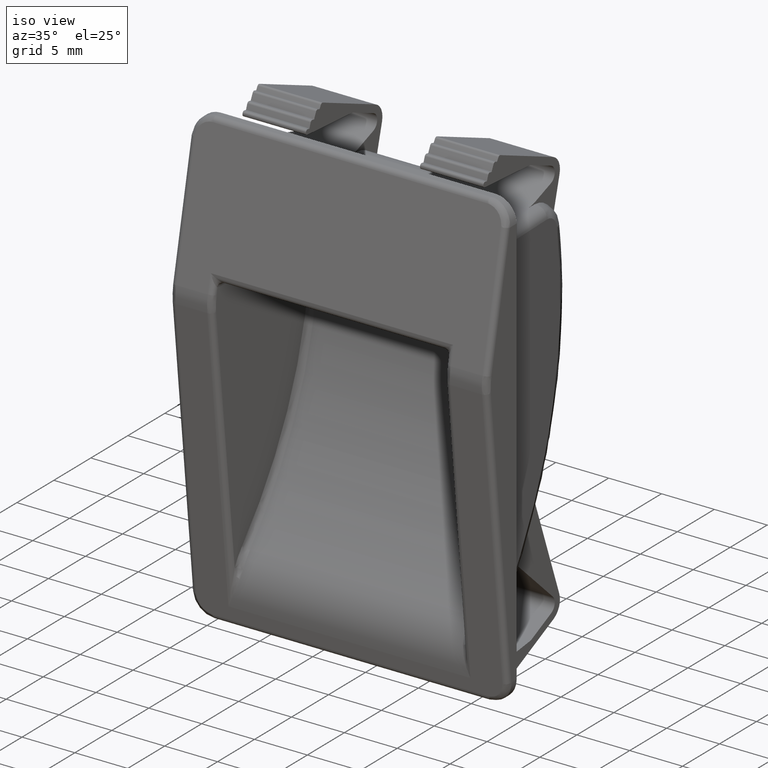
[diagram: clean part render]
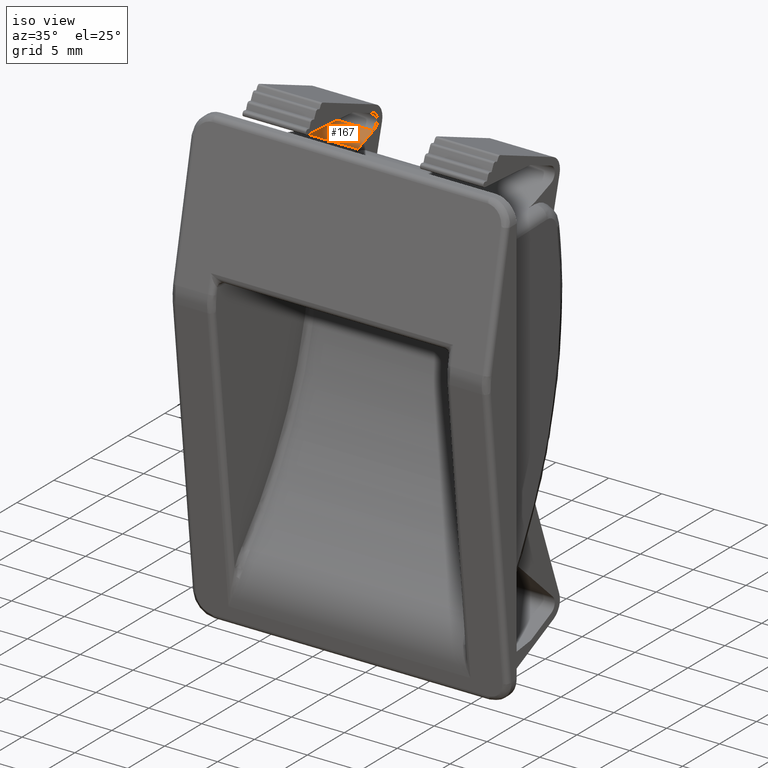
[diagram: same view with one face highlighted and labeled with its STEP entity id]
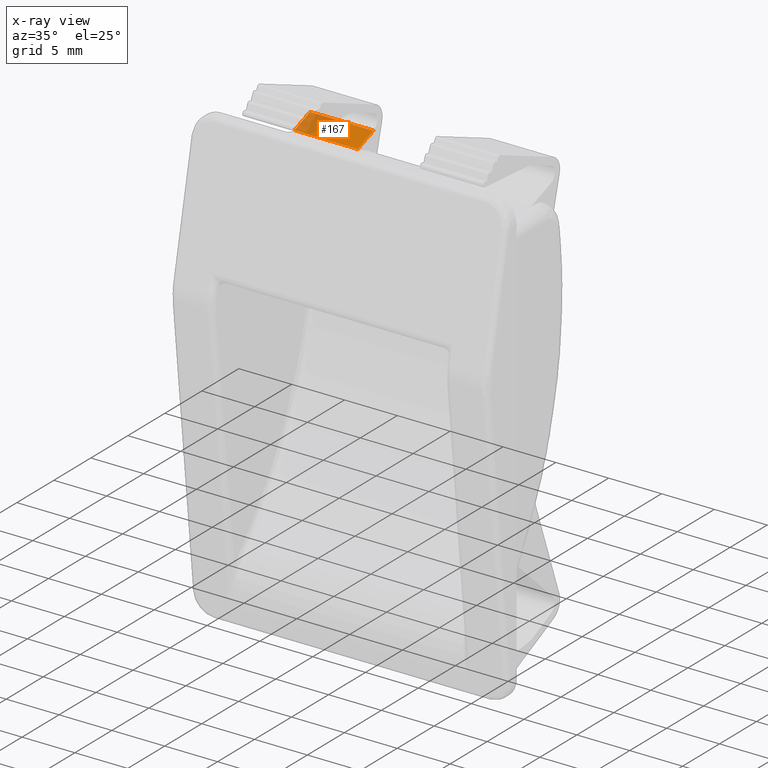
[diagram: x-ray of the same camera — body ghosted, the highlighted face saturated]
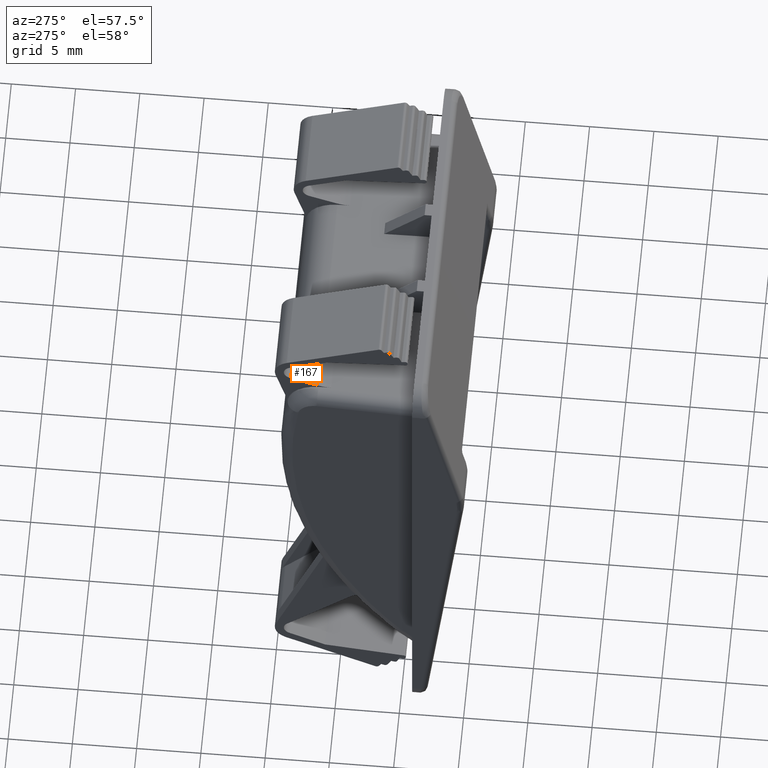
[diagram: same view with one face highlighted and labeled with its STEP entity id]
A machine part, iso view. The second image highlights one B-rep face of the part: STEP entity #167.
The next image is the same camera in x-ray: the body ghosted, the highlighted face saturated — about 32% of this face is hidden behind the body in this view.
A second angle (auxiliary view) of the same face is appended — the face is thin or edge-on in the first view.
In plain terms, the highlighted planar face has unit normal (0, -0.342, 0.9397).
Its self-contained STEP definition (entity closure, byte-faithful):
#167=ADVANCED_FACE('',(#1520),#1519,.T.);
#1519=PLANE('',#3143);
#1520=FACE_OUTER_BOUND('',#3144,.T.);
#3140=CARTESIAN_POINT('',(-1.20000000000E+001,1.39858484265E+001,1.15264295591E+001));
#3141=DIRECTION('',(0.00000000000E+000,-3.42020143326E-001,9.39692620786E-001));
#3142=DIRECTION('',(0.00000000000E+000,-9.39692620786E-001,-3.42020143326E-001));
#3143=AXIS2_PLACEMENT_3D('',#3140,#3141,#3142);
#3144=EDGE_LOOP('',(#4724,#4725,#4726,#4727));
#4724=ORIENTED_EDGE('',*,*,#5570,.F.);
#4725=ORIENTED_EDGE('',*,*,#5571,.F.);
#4726=ORIENTED_EDGE('',*,*,#5572,.T.);
#4727=ORIENTED_EDGE('',*,*,#5568,.T.);
#5568=EDGE_CURVE('',#8572,#8565,#8573,.T.);
#5570=EDGE_CURVE('',#8585,#8565,#8586,.T.);
#5571=EDGE_CURVE('',#8592,#8585,#8593,.T.);
#5572=EDGE_CURVE('',#8592,#8572,#8599,.T.);
#8565=VERTEX_POINT('',#11201);
#8572=VERTEX_POINT('',#11206);
#8573=LINE('',#11207,#11208);
#8585=VERTEX_POINT('',#11214);
#8586=LINE('',#11215,#11216);
#8592=VERTEX_POINT('',#11218);
#8593=LINE('',#11219,#11220);
#8599=LINE('',#11222,#11223);
#11201=CARTESIAN_POINT('',(-1.14000000000E+001,1.37757622355E+001,1.14499644390E+001));
#11206=CARTESIAN_POINT('',(-5.40000000000E+000,1.37757622355E+001,1.14499644390E+001));
#11207=CARTESIAN_POINT('',(-5.40000000000E+000,1.37757622355E+001,1.14499644390E+001));
#11208=VECTOR('',#11209,6.00000000000E+000);
#11209=DIRECTION('',(-1.00000000000E+000,0.00000000000E+000,0.00000000000E+000));
#11214=CARTESIAN_POINT('',(-1.14000000000E+001,1.16749003261E+001,1.06853132377E+001));
#11215=CARTESIAN_POINT('',(-1.14000000000E+001,1.16749003261E+001,1.06853132377E+001));
#11216=VECTOR('',#11217,2.23569054703E+000);
#11217=DIRECTION('',(0.00000000000E+000,9.39692620786E-001,3.42020143326E-001));
#11218=CARTESIAN_POINT('',(-5.40000000000E+000,1.16749003261E+001,1.06853132377E+001));
#11219=CARTESIAN_POINT('',(-5.40000000000E+000,1.16749003261E+001,1.06853132377E+001));
#11220=VECTOR('',#11221,6.00000000000E+000);
#11221=DIRECTION('',(-1.00000000000E+000,0.00000000000E+000,0.00000000000E+000));
#11222=CARTESIAN_POINT('',(-5.40000000000E+000,1.16749003261E+001,1.06853132377E+001));
#11223=VECTOR('',#11224,2.23569054703E+000);
#11224=DIRECTION('',(0.00000000000E+000,9.39692620786E-001,3.42020143326E-001));